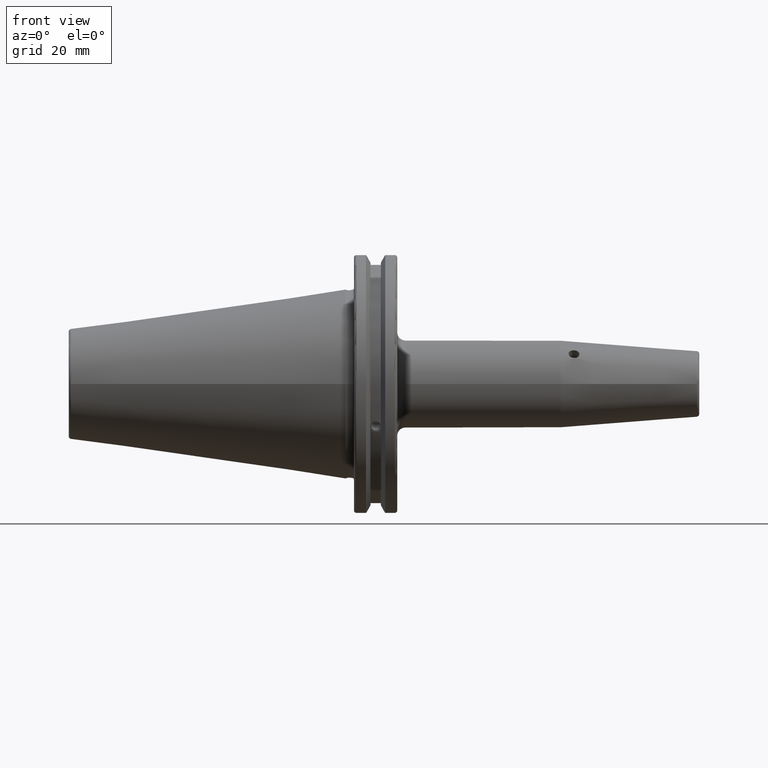
[diagram: clean part render]
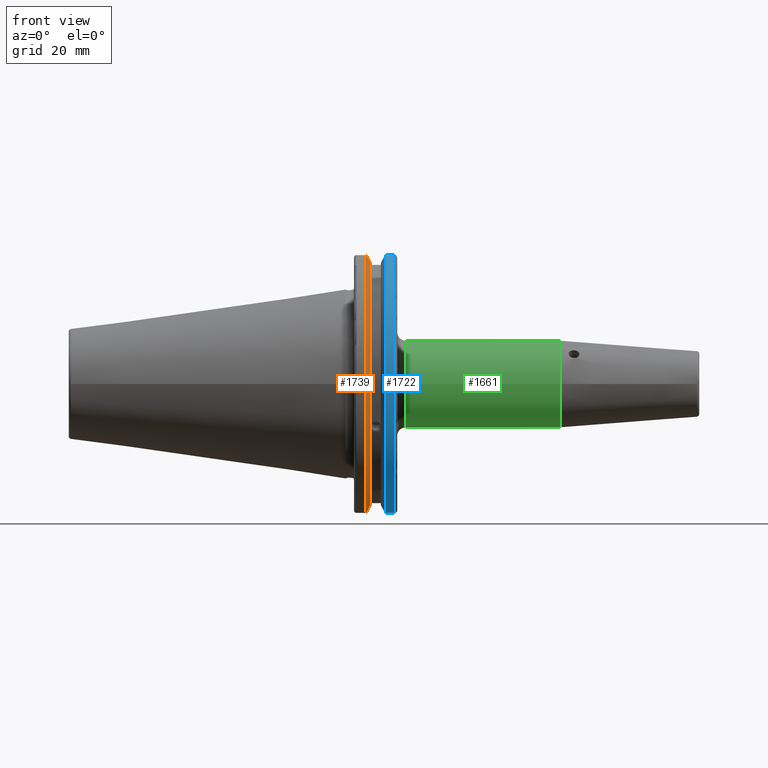
[diagram: same view with three faces highlighted in distinct colors, each labeled with its STEP entity id]
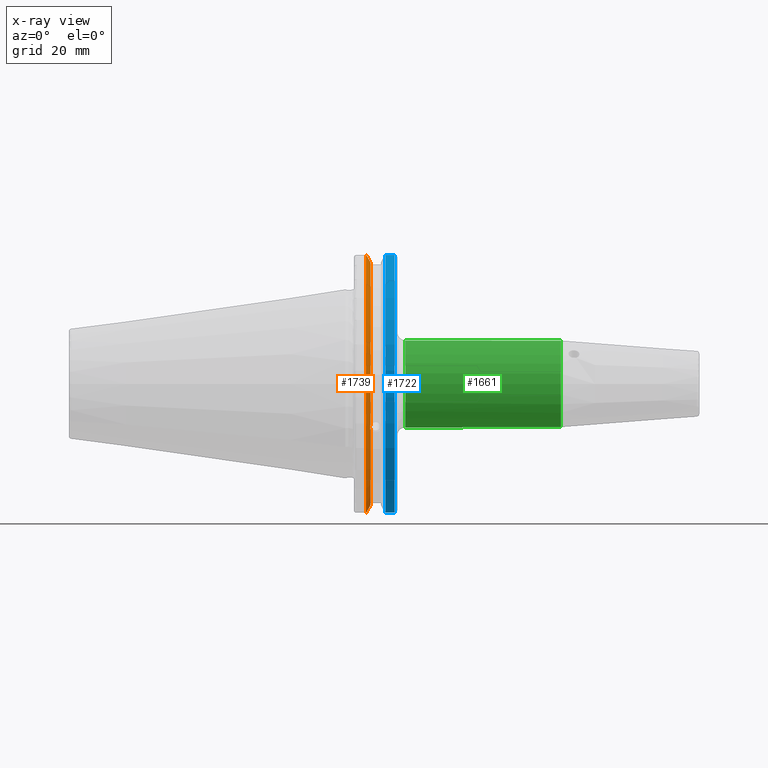
[diagram: x-ray of the same camera — body ghosted, the three highlighted faces saturated]
A machine part, front view with three faces highlighted in distinct colors.
The next image is the same camera in x-ray (body ghosted, the three faces saturated) — at least one of them is partly hidden behind the body in this view.
Their STEP definitions:

[orange] entity #1739 — the highlighted conical surface has half-angle 60 deg.
#25=(
BOUNDED_CURVE()
B_SPLINE_CURVE(2,(#3438,#3439,#3440),.UNSPECIFIED.,.F.,.F.)
B_SPLINE_CURVE_WITH_KNOTS((3,3),(0.,0.275823910674601),.UNSPECIFIED.)
CURVE()
GEOMETRIC_REPRESENTATION_ITEM()
RATIONAL_B_SPLINE_CURVE((1.,1.00038235573593,1.00012873636487))
REPRESENTATION_ITEM('')
);
#26=(
BOUNDED_CURVE()
B_SPLINE_CURVE(2,(#3450,#3451,#3452),.UNSPECIFIED.,.F.,.F.)
B_SPLINE_CURVE_WITH_KNOTS((3,3),(0.0558332664507492,0.331657177124507),
 .UNSPECIFIED.)
CURVE()
GEOMETRIC_REPRESENTATION_ITEM()
RATIONAL_B_SPLINE_CURVE((1.00012873636807,1.00038235574544,1.))
REPRESENTATION_ITEM('')
);
#27=(
BOUNDED_CURVE()
B_SPLINE_CURVE(2,(#3485,#3486,#3487),.UNSPECIFIED.,.F.,.F.)
B_SPLINE_CURVE_WITH_KNOTS((3,3),(0.,0.0648240472897372),.UNSPECIFIED.)
CURVE()
GEOMETRIC_REPRESENTATION_ITEM()
RATIONAL_B_SPLINE_CURVE((1.,1.00011477674836,1.00019140645948))
REPRESENTATION_ITEM('')
);
#28=(
BOUNDED_CURVE()
B_SPLINE_CURVE(2,(#3493,#3494,#3495),.UNSPECIFIED.,.F.,.F.)
B_SPLINE_CURVE_WITH_KNOTS((3,3),(0.325260944932348,0.390084992222201),
 .UNSPECIFIED.)
CURVE()
GEOMETRIC_REPRESENTATION_ITEM()
RATIONAL_B_SPLINE_CURVE((1.00019140645916,1.00011477674817,1.))
REPRESENTATION_ITEM('')
);
#140=CIRCLE('',#1842,46.4219772964944);
#164=CIRCLE('',#1893,49.2125);
#180=CIRCLE('',#1940,46.4219772964944);
#198=CONICAL_SURFACE('',#1939,47.8172386482472,1.0471975511966);
#290=FACE_OUTER_BOUND('',#410,.T.);
#410=EDGE_LOOP('',(#1595,#1596,#1597,#1598,#1599,#1600,#1601,#1602));
#439=B_SPLINE_CURVE_WITH_KNOTS('',3,(#2974,#2975,#2976,#2977,#2978,#2979,
#2980,#2981,#2982,#2983,#2984,#2985,#2986,#2987),.UNSPECIFIED.,.F.,.F.,
(4,2,2,2,2,2,4),(0.426712868358719,0.441644498666906,0.48031331322313,0.518982127779354,
0.557650942335578,0.596319756891801,0.611251387199988),.UNSPECIFIED.);
#741=VERTEX_POINT('',#2971);
#742=VERTEX_POINT('',#2973);
#759=VERTEX_POINT('',#3064);
#819=VERTEX_POINT('',#3435);
#820=VERTEX_POINT('',#3437);
#823=VERTEX_POINT('',#3449);
#827=VERTEX_POINT('',#3483);
#828=VERTEX_POINT('',#3489);
#936=EDGE_CURVE('',#742,#741,#439,.T.);
#959=EDGE_CURVE('',#742,#759,#140,.T.);
#1041=EDGE_CURVE('',#820,#819,#25,.T.);
#1047=EDGE_CURVE('',#823,#759,#26,.T.);
#1055=EDGE_CURVE('',#827,#819,#27,.T.);
#1057=EDGE_CURVE('',#827,#828,#164,.T.);
#1058=EDGE_CURVE('',#823,#828,#28,.T.);
#1100=EDGE_CURVE('',#820,#741,#180,.T.);
#1595=ORIENTED_EDGE('',*,*,#936,.T.);
#1596=ORIENTED_EDGE('',*,*,#1100,.F.);
#1597=ORIENTED_EDGE('',*,*,#1041,.T.);
#1598=ORIENTED_EDGE('',*,*,#1055,.F.);
#1599=ORIENTED_EDGE('',*,*,#1057,.T.);
#1600=ORIENTED_EDGE('',*,*,#1058,.F.);
#1601=ORIENTED_EDGE('',*,*,#1047,.T.);
#1602=ORIENTED_EDGE('',*,*,#959,.F.);
#1739=ADVANCED_FACE('',(#290),#198,.T.);
#1842=AXIS2_PLACEMENT_3D('',#3065,#2139,#2140);
#1893=AXIS2_PLACEMENT_3D('',#3491,#2283,#2284);
#1939=AXIS2_PLACEMENT_3D('',#3607,#2396,#2397);
#1940=AXIS2_PLACEMENT_3D('',#3608,#2398,#2399);
#2139=DIRECTION('center_axis',(1.,0.,0.));
#2140=DIRECTION('ref_axis',(0.,0.,-1.));
#2283=DIRECTION('center_axis',(1.,0.,0.));
#2284=DIRECTION('ref_axis',(0.,0.,-1.));
#2396=DIRECTION('center_axis',(-1.,0.,0.));
#2397=DIRECTION('ref_axis',(0.,-1.,-1.22464679914735E-16));
#2398=DIRECTION('center_axis',(1.,0.,0.));
#2399=DIRECTION('ref_axis',(0.,0.,-1.));
#2971=CARTESIAN_POINT('',(9.2191,-43.9096390749305,-15.0646464421033));
#2973=CARTESIAN_POINT('',(9.2191,-43.3201030900029,-16.684383248648));
#2974=CARTESIAN_POINT('Ctrl Pts',(9.21910000000001,-43.3201030900029,-16.6843832486479));
#2975=CARTESIAN_POINT('Ctrl Pts',(9.20211843903392,-43.3613106941341,-16.6592273018006));
#2976=CARTESIAN_POINT('Ctrl Pts',(9.18608675403322,-43.4012416983557,-16.6326763251437));
#2977=CARTESIAN_POINT('Ctrl Pts',(9.13238673845037,-43.5391037343221,-16.5325130832406));
#2978=CARTESIAN_POINT('Ctrl Pts',(9.09621610663556,-43.6406982153491,-16.441180795372));
#2979=CARTESIAN_POINT('Ctrl Pts',(9.04690868251975,-43.8110833825827,-16.2291323464527));
#2980=CARTESIAN_POINT('Ctrl Pts',(9.0341,-43.8794096049168,-16.10796730316));
#2981=CARTESIAN_POINT('Ctrl Pts',(9.0341,-43.9675796948952,-15.8657219718732));
#2982=CARTESIAN_POINT('Ctrl Pts',(9.04690868251975,-43.9931221605126,-15.7289849146254));
#2983=CARTESIAN_POINT('Ctrl Pts',(9.09621610663556,-43.9989016655819,-15.4570249042867));
#2984=CARTESIAN_POINT('Ctrl Pts',(9.13238673845037,-43.9797830409458,-15.3217566390708));
#2985=CARTESIAN_POINT('Ctrl Pts',(9.18608675403322,-43.9385582852181,-15.1564111356409));
#2986=CARTESIAN_POINT('Ctrl Pts',(9.20211843903392,-43.9250360001461,-15.1104047527575));
#2987=CARTESIAN_POINT('Ctrl Pts',(9.2191,-43.9096390749305,-15.0646464421033));
#3064=CARTESIAN_POINT('',(9.2191,-12.95,-44.5791147973604));
#3065=CARTESIAN_POINT('Origin',(9.2191,0.,0.));
#3435=CARTESIAN_POINT('',(7.88638960562424,-12.95,46.9780755322918));
#3437=CARTESIAN_POINT('',(9.2191,-12.95,44.5791147973604));
#3438=CARTESIAN_POINT('Ctrl Pts',(9.2191,-12.95,44.5791147973604));
#3439=CARTESIAN_POINT('Ctrl Pts',(8.57020449055857,-12.95,45.7494966802148));
#3440=CARTESIAN_POINT('Ctrl Pts',(7.88638960562424,-12.95,46.9780755322918));
#3449=CARTESIAN_POINT('',(7.88638960562425,-12.95,-46.9780755322918));
#3450=CARTESIAN_POINT('Ctrl Pts',(7.88638960562425,-12.95,-46.9780755322918));
#3451=CARTESIAN_POINT('Ctrl Pts',(8.57020449054166,-12.95,-45.7494966802452));
#3452=CARTESIAN_POINT('Ctrl Pts',(9.2191,-12.95,-44.5791147973604));
#3483=CARTESIAN_POINT('',(7.60799096595127,-13.4317035994433,47.3440544806494));
#3485=CARTESIAN_POINT('Ctrl Pts',(7.60799096595126,-13.4317035994433,47.3440544806494));
#3486=CARTESIAN_POINT('Ctrl Pts',(7.7482689666382,-13.1896660169966,47.1601640966265));
#3487=CARTESIAN_POINT('Ctrl Pts',(7.88638960562424,-12.95,46.9780755322918));
#3489=CARTESIAN_POINT('',(7.60799096595127,-13.4317035994433,-47.3440544806494));
#3491=CARTESIAN_POINT('Origin',(7.60799096595127,0.,0.));
#3493=CARTESIAN_POINT('Ctrl Pts',(7.88638960562425,-12.95,-46.9780755322918));
#3494=CARTESIAN_POINT('Ctrl Pts',(7.74826896663813,-13.1896660169967,-47.1601640966265));
#3495=CARTESIAN_POINT('Ctrl Pts',(7.60799096595127,-13.4317035994434,-47.3440544806494));
#3607=CARTESIAN_POINT('Origin',(8.41354548297563,0.,0.));
#3608=CARTESIAN_POINT('Origin',(9.2191,0.,0.));

[blue] entity #1722 — the highlighted cylindrical surface (partial cylindrical patch) has radius 49.2125 mm, axis along (1, 0, 0).
#136=CIRCLE('',#1835,49.2125);
#162=CIRCLE('',#1886,49.2125);
#273=FACE_OUTER_BOUND('',#391,.T.);
#391=EDGE_LOOP('',(#1524,#1525,#1526,#1527));
#560=LINE('',#3564,#662);
#561=LINE('',#3566,#663);
#662=VECTOR('',#2337,10.);
#663=VECTOR('',#2340,10.);
#753=VERTEX_POINT('',#3040);
#754=VERTEX_POINT('',#3044);
#816=VERTEX_POINT('',#3407);
#817=VERTEX_POINT('',#3416);
#951=EDGE_CURVE('',#754,#753,#136,.T.);
#1036=EDGE_CURVE('',#816,#817,#162,.T.);
#1082=EDGE_CURVE('',#817,#753,#560,.T.);
#1083=EDGE_CURVE('',#754,#816,#561,.T.);
#1524=ORIENTED_EDGE('',*,*,#1036,.F.);
#1525=ORIENTED_EDGE('',*,*,#1083,.F.);
#1526=ORIENTED_EDGE('',*,*,#951,.T.);
#1527=ORIENTED_EDGE('',*,*,#1082,.F.);
#1641=CYLINDRICAL_SURFACE('',#1914,49.2125);
#1722=ADVANCED_FACE('',(#273),#1641,.T.);
#1835=AXIS2_PLACEMENT_3D('',#3045,#2123,#2124);
#1886=AXIS2_PLACEMENT_3D('',#3417,#2258,#2259);
#1914=AXIS2_PLACEMENT_3D('',#3565,#2338,#2339);
#2123=DIRECTION('center_axis',(1.,0.,0.));
#2124=DIRECTION('ref_axis',(0.,0.,-1.));
#2258=DIRECTION('center_axis',(1.,0.,0.));
#2259=DIRECTION('ref_axis',(0.,-1.,1.60812264967664E-16));
#2337=DIRECTION('',(-1.,0.,0.));
#2338=DIRECTION('center_axis',(1.,0.,0.));
#2339=DIRECTION('ref_axis',(0.,-1.,1.22464679914735E-16));
#2340=DIRECTION('',(1.,0.,0.));
#3040=CARTESIAN_POINT('',(14.6602090340487,-13.4317035994433,-47.3440544806494));
#3044=CARTESIAN_POINT('',(14.6602090340487,-13.4317035994433,47.3440544806494));
#3045=CARTESIAN_POINT('Origin',(14.6602090340487,0.,0.));
#3407=CARTESIAN_POINT('',(18.05,-13.4317035994433,47.3440544806494));
#3416=CARTESIAN_POINT('',(18.05,-13.4317035994433,-47.3440544806494));
#3417=CARTESIAN_POINT('Origin',(18.05,0.,0.));
#3564=CARTESIAN_POINT('',(16.8551045170244,-13.4317035994433,-47.3440544806494));
#3565=CARTESIAN_POINT('Origin',(16.8551045170244,0.,0.));
#3566=CARTESIAN_POINT('',(16.8551045170244,-13.4317035994433,47.3440544806494));

[green] entity #1661 — the highlighted cylindrical surface (bore or boss wall) has radius 16 mm, axis along (1, 0, 0).
#114=CIRCLE('',#1792,16.);
#115=CIRCLE('',#1794,16.);
#118=CIRCLE('',#1797,16.);
#212=FACE_OUTER_BOUND('',#311,.T.);
#311=EDGE_LOOP('',(#1182,#1183,#1184,#1185,#1186));
#477=LINE('',#2708,#579);
#579=VECTOR('',#2024,16.);
#702=VERTEX_POINT('',#2696);
#703=VERTEX_POINT('',#2700);
#704=VERTEX_POINT('',#2701);
#886=EDGE_CURVE('',#702,#702,#114,.T.);
#887=EDGE_CURVE('',#703,#704,#115,.T.);
#890=EDGE_CURVE('',#704,#703,#118,.T.);
#891=EDGE_CURVE('',#702,#703,#477,.T.);
#1182=ORIENTED_EDGE('',*,*,#886,.F.);
#1183=ORIENTED_EDGE('',*,*,#891,.T.);
#1184=ORIENTED_EDGE('',*,*,#890,.F.);
#1185=ORIENTED_EDGE('',*,*,#887,.F.);
#1186=ORIENTED_EDGE('',*,*,#891,.F.);
#1621=CYLINDRICAL_SURFACE('',#1798,16.);
#1661=ADVANCED_FACE('',(#212),#1621,.T.);
#1792=AXIS2_PLACEMENT_3D('',#2698,#2010,#2011);
#1794=AXIS2_PLACEMENT_3D('',#2702,#2014,#2015);
#1797=AXIS2_PLACEMENT_3D('',#2706,#2020,#2021);
#1798=AXIS2_PLACEMENT_3D('',#2707,#2022,#2023);
#2010=DIRECTION('center_axis',(1.,0.,0.));
#2011=DIRECTION('ref_axis',(0.,0.,-1.));
#2014=DIRECTION('center_axis',(-1.,0.,0.));
#2015=DIRECTION('ref_axis',(0.,-1.,-1.22464679914735E-16));
#2020=DIRECTION('center_axis',(-1.,0.,0.));
#2021=DIRECTION('ref_axis',(0.,-1.,-1.22464679914735E-16));
#2022=DIRECTION('center_axis',(1.,0.,0.));
#2023=DIRECTION('ref_axis',(0.,1.,0.));
#2024=DIRECTION('',(-1.,0.,0.));
#2696=CARTESIAN_POINT('',(79.1751810553012,-16.,-1.95943487863577E-15));
#2698=CARTESIAN_POINT('Origin',(79.1751810553012,0.,0.));
#2700=CARTESIAN_POINT('',(22.05,-16.,-1.95943487863577E-15));
#2701=CARTESIAN_POINT('',(22.05,-1.95943487863577E-15,-16.));
#2702=CARTESIAN_POINT('Origin',(22.05,0.,0.));
#2706=CARTESIAN_POINT('Origin',(22.05,0.,0.));
#2707=CARTESIAN_POINT('Origin',(49.1125905276506,0.,0.));
#2708=CARTESIAN_POINT('',(49.1125905276506,-16.,-1.95943487863577E-15));